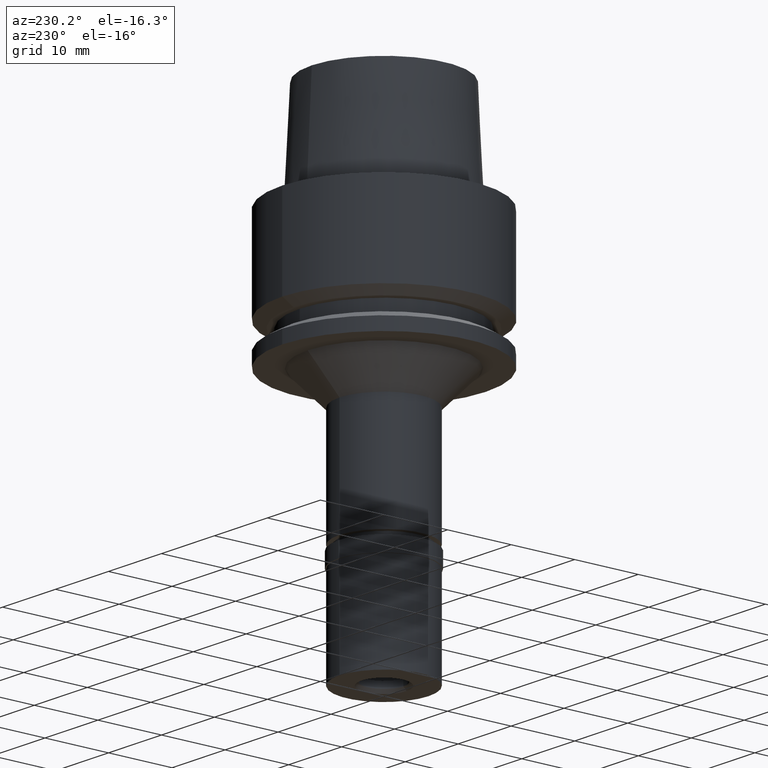
[diagram: clean part render]
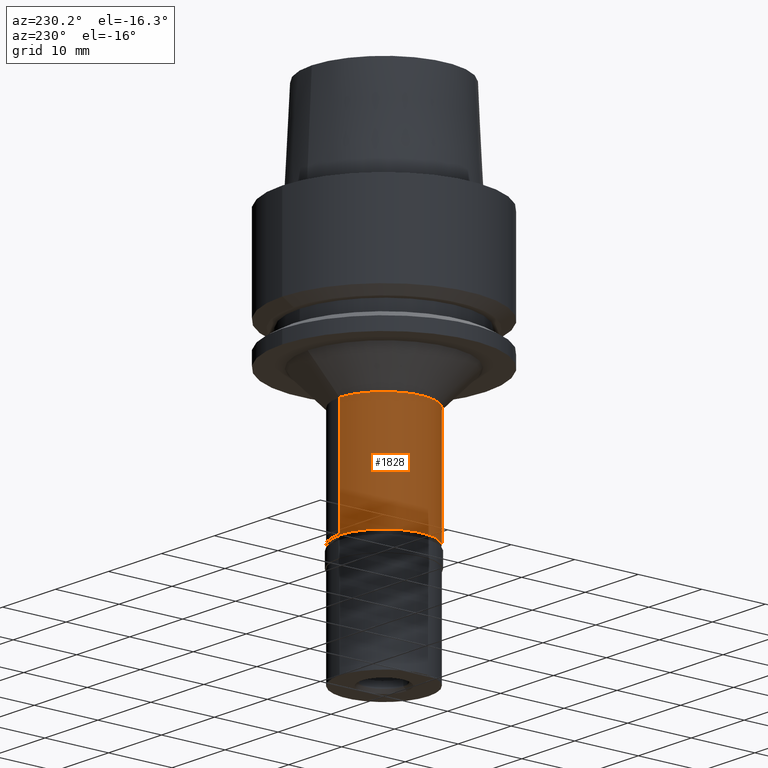
[diagram: same view with one face highlighted and labeled with its STEP entity id]
A machine part, auxiliary view. The second image highlights one B-rep face of the part: STEP entity #1828.
In plain terms, the highlighted cylindrical surface (partial cylindrical patch) has radius 7 mm, axis along (0, 0, 1).
Its self-contained STEP definition (entity closure, byte-faithful):
#160 = CIRCLE ( 'NONE', #2061, 7.000000000000000000 ) ;
#222 = LINE ( 'NONE', #1260, #233 ) ;
#229 = EDGE_CURVE ( 'NONE', #888, #651, #813, .T. ) ;
#233 = VECTOR ( 'NONE', #2517, 1000.000000000000000 ) ;
#323 = AXIS2_PLACEMENT_3D ( 'NONE', #2141, #1716, #647 ) ;
#343 = EDGE_CURVE ( 'NONE', #651, #1509, #222, .T. ) ;
#428 = CARTESIAN_POINT ( 'NONE',  ( 0.0000000000000000000, 0.0000000000000000000, -42.29999999999999716 ) ) ;
#647 = DIRECTION ( 'NONE',  ( 0.0000000000000000000, -1.000000000000000000, 0.0000000000000000000 ) ) ;
#651 = VERTEX_POINT ( 'NONE', #2218 ) ;
#780 = CARTESIAN_POINT ( 'NONE',  ( 0.0000000000000000000, -7.000000000000000000, -25.00000000000000000 ) ) ;
#791 = LINE ( 'NONE', #780, #1335 ) ;
#813 = CIRCLE ( 'NONE', #323, 7.000000000000000000 ) ;
#888 = VERTEX_POINT ( 'NONE', #1758 ) ;
#891 = FACE_OUTER_BOUND ( 'NONE', #1752, .T. ) ;
#925 = DIRECTION ( 'NONE',  ( 0.0000000000000000000, 0.0000000000000000000, 1.000000000000000000 ) ) ;
#1088 = DIRECTION ( 'NONE',  ( 0.0000000000000000000, 1.000000000000000000, 0.0000000000000000000 ) ) ;
#1128 = EDGE_CURVE ( 'NONE', #888, #1792, #791, .T. ) ;
#1131 = DIRECTION ( 'NONE',  ( 0.0000000000000000000, 1.000000000000000000, 0.0000000000000000000 ) ) ;
#1260 = CARTESIAN_POINT ( 'NONE',  ( 0.0000000000000000000, 7.000000000000000000, -25.00000000000000000 ) ) ;
#1288 = ORIENTED_EDGE ( 'NONE', *, *, #229, .T. ) ;
#1335 = VECTOR ( 'NONE', #2627, 1000.000000000000000 ) ;
#1461 = CARTESIAN_POINT ( 'NONE',  ( 0.0000000000000000000, -7.000000000000000000, -42.29999999999999716 ) ) ;
#1509 = VERTEX_POINT ( 'NONE', #2307 ) ;
#1689 = CYLINDRICAL_SURFACE ( 'NONE', #2257, 7.000000000000000000 ) ;
#1716 = DIRECTION ( 'NONE',  ( 0.0000000000000000000, 0.0000000000000000000, -1.000000000000000000 ) ) ;
#1752 = EDGE_LOOP ( 'NONE', ( #2172, #2312, #1288, #1808 ) ) ;
#1758 = CARTESIAN_POINT ( 'NONE',  ( 0.0000000000000000000, -7.000000000000000000, -25.00000000000000000 ) ) ;
#1792 = VERTEX_POINT ( 'NONE', #1461 ) ;
#1794 = EDGE_CURVE ( 'NONE', #1509, #1792, #160, .T. ) ;
#1808 = ORIENTED_EDGE ( 'NONE', *, *, #343, .T. ) ;
#1828 = ADVANCED_FACE ( 'NONE', ( #891 ), #1689, .T. ) ;
#2061 = AXIS2_PLACEMENT_3D ( 'NONE', #428, #925, #1131 ) ;
#2141 = CARTESIAN_POINT ( 'NONE',  ( 0.0000000000000000000, 0.0000000000000000000, -25.00000000000000000 ) ) ;
#2172 = ORIENTED_EDGE ( 'NONE', *, *, #1794, .T. ) ;
#2218 = CARTESIAN_POINT ( 'NONE',  ( 0.0000000000000000000, 7.000000000000000000, -25.00000000000000000 ) ) ;
#2257 = AXIS2_PLACEMENT_3D ( 'NONE', #2562, #2509, #1088 ) ;
#2307 = CARTESIAN_POINT ( 'NONE',  ( 0.0000000000000000000, 7.000000000000000000, -42.29999999999999716 ) ) ;
#2312 = ORIENTED_EDGE ( 'NONE', *, *, #1128, .F. ) ;
#2509 = DIRECTION ( 'NONE',  ( 0.0000000000000000000, 0.0000000000000000000, 1.000000000000000000 ) ) ;
#2517 = DIRECTION ( 'NONE',  ( 0.0000000000000000000, 0.0000000000000000000, -1.000000000000000000 ) ) ;
#2562 = CARTESIAN_POINT ( 'NONE',  ( 0.0000000000000000000, 0.0000000000000000000, -59.60000000000000142 ) ) ;
#2627 = DIRECTION ( 'NONE',  ( 0.0000000000000000000, 0.0000000000000000000, -1.000000000000000000 ) ) ;